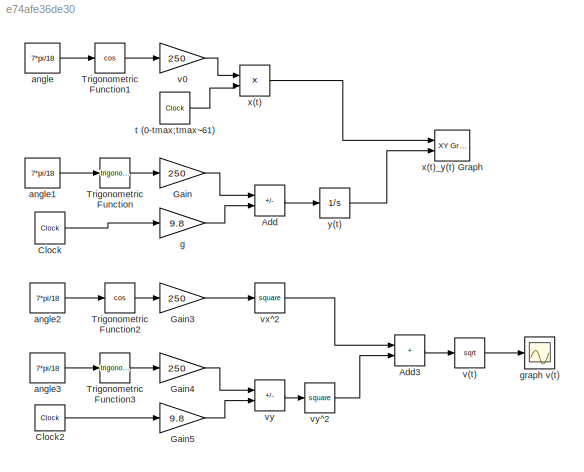
MODEL slx_e74afe36de30
KIND model
CONFIG AbsTol = auto
CONFIG EnableMultiTasking = off
CONFIG FixedStep = auto
CONFIG MaxStep = auto
CONFIG MinStep = auto
CONFIG RelTol = 1e-3
CONFIG SampleTimeConstraint = Unconstrained
CONFIG SolverName = VariableStepAuto
CONFIG StartTime = 0.0
CONFIG StopTime = 61
BLOCK [Sum] Add
  IconShape = rectangular
  Inputs = +-
  Ports = [2, 1]
BLOCK [Sum] Add3
  IconShape = rectangular
  Ports = [2, 1]
BLOCK [Clock] Clock
BLOCK [Clock] Clock2
BLOCK [Gain] Gain
  Gain = 250
BLOCK [Gain] Gain3
  Gain = 250
BLOCK [Gain] Gain4
  Gain = 250
BLOCK [Gain] Gain5
  Gain = 9.8
BLOCK [Trigonometry] Trigonometric Function
  Ports = [1, 1]
BLOCK [Trigonometry] Trigonometric Function1
  Operator = cos
  Ports = [1, 1]
BLOCK [Trigonometry] Trigonometric Function2
  Operator = cos
  Ports = [1, 1]
BLOCK [Trigonometry] Trigonometric Function3
  Ports = [1, 1]
BLOCK [Constant] angle
  Value = 7*pi/18
BLOCK [Constant] angle1
  Value = 7*pi/18
BLOCK [Constant] angle2
  Value = 7*pi/18
BLOCK [Constant] angle3
  Value = 7*pi/18
BLOCK [Gain] g
  Gain = 9.8
BLOCK [Scope] graph v(t)
  Floating = off
  NumInputPorts = 1
  Ports = [1]
  ScopeSpecificationString = Simulink.scopes.TimeScopeBlockCfg('CurrentConfiguration', extmgr.ConfigurationSet(extmgr.Configuration('Core','General UI',true,'FigureColor',[1 1 1]),extmgr.Configuration('Core','Source UI',true),extmgr.Configuration('Sources','WiredSimulink',true,'DataLoggingVariableName','ScopeData1'),extmgr.Configuration('Visuals','Time Domain',true,'SerializedDisplays',{struct('MinYLimReal','122.6221','MaxYLi...<+1520ch>
BLOCK [Clock] t (0-tmax;tmax~61)
BLOCK [Sqrt] v(t)
BLOCK [Gain] v0
  Gain = 250
BLOCK [Math] vx^2
  Operator = square
  Ports = [1, 1]
BLOCK [Sum] vy
  IconShape = rectangular
  Inputs = +-
  Ports = [2, 1]
BLOCK [Math] vy^2
  Operator = square
  Ports = [1, 1]
BLOCK [Product] x(t)
  Inputs = **
  Ports = [2, 1]
BLOCK [Reference] x(t)_y(t) Graph  REF=simulink/Sinks/XY Graph
  Ports = [2]
  SourceBlock = simulink/Sinks/XY Graph
  SourceProductBaseCode = SL
  SourceType = XY scope.
BLOCK [Integrator] y(t)
  LowerSaturationLimit = 0
  Ports = [1, 1]
  UpperSaturationLimit = 61
LINE Add3:1 -> v(t):1
LINE Add:1 -> y(t):1
LINE Clock2:1 -> Gain5:1
LINE Clock:1 -> g:1
LINE Gain3:1 -> vx^2:1
LINE Gain4:1 -> vy:1
LINE Gain5:1 -> vy:2
LINE Gain:1 -> Add:1
LINE Trigonometric Function1:1 -> v0:1
LINE Trigonometric Function2:1 -> Gain3:1
LINE Trigonometric Function3:1 -> Gain4:1
LINE Trigonometric Function:1 -> Gain:1
LINE angle1:1 -> Trigonometric Function:1
LINE angle2:1 -> Trigonometric Function2:1
LINE angle3:1 -> Trigonometric Function3:1
LINE angle:1 -> Trigonometric Function1:1
LINE g:1 -> Add:2
LINE t (0-tmax;tmax~61):1 -> x(t):2
LINE v(t):1 -> graph v(t):1
LINE v0:1 -> x(t):1
LINE vx^2:1 -> Add3:1
LINE vy:1 -> vy^2:1
LINE vy^2:1 -> Add3:2
LINE x(t):1 -> x(t)_y(t) Graph:1
LINE y(t):1 -> x(t)_y(t) Graph:2
